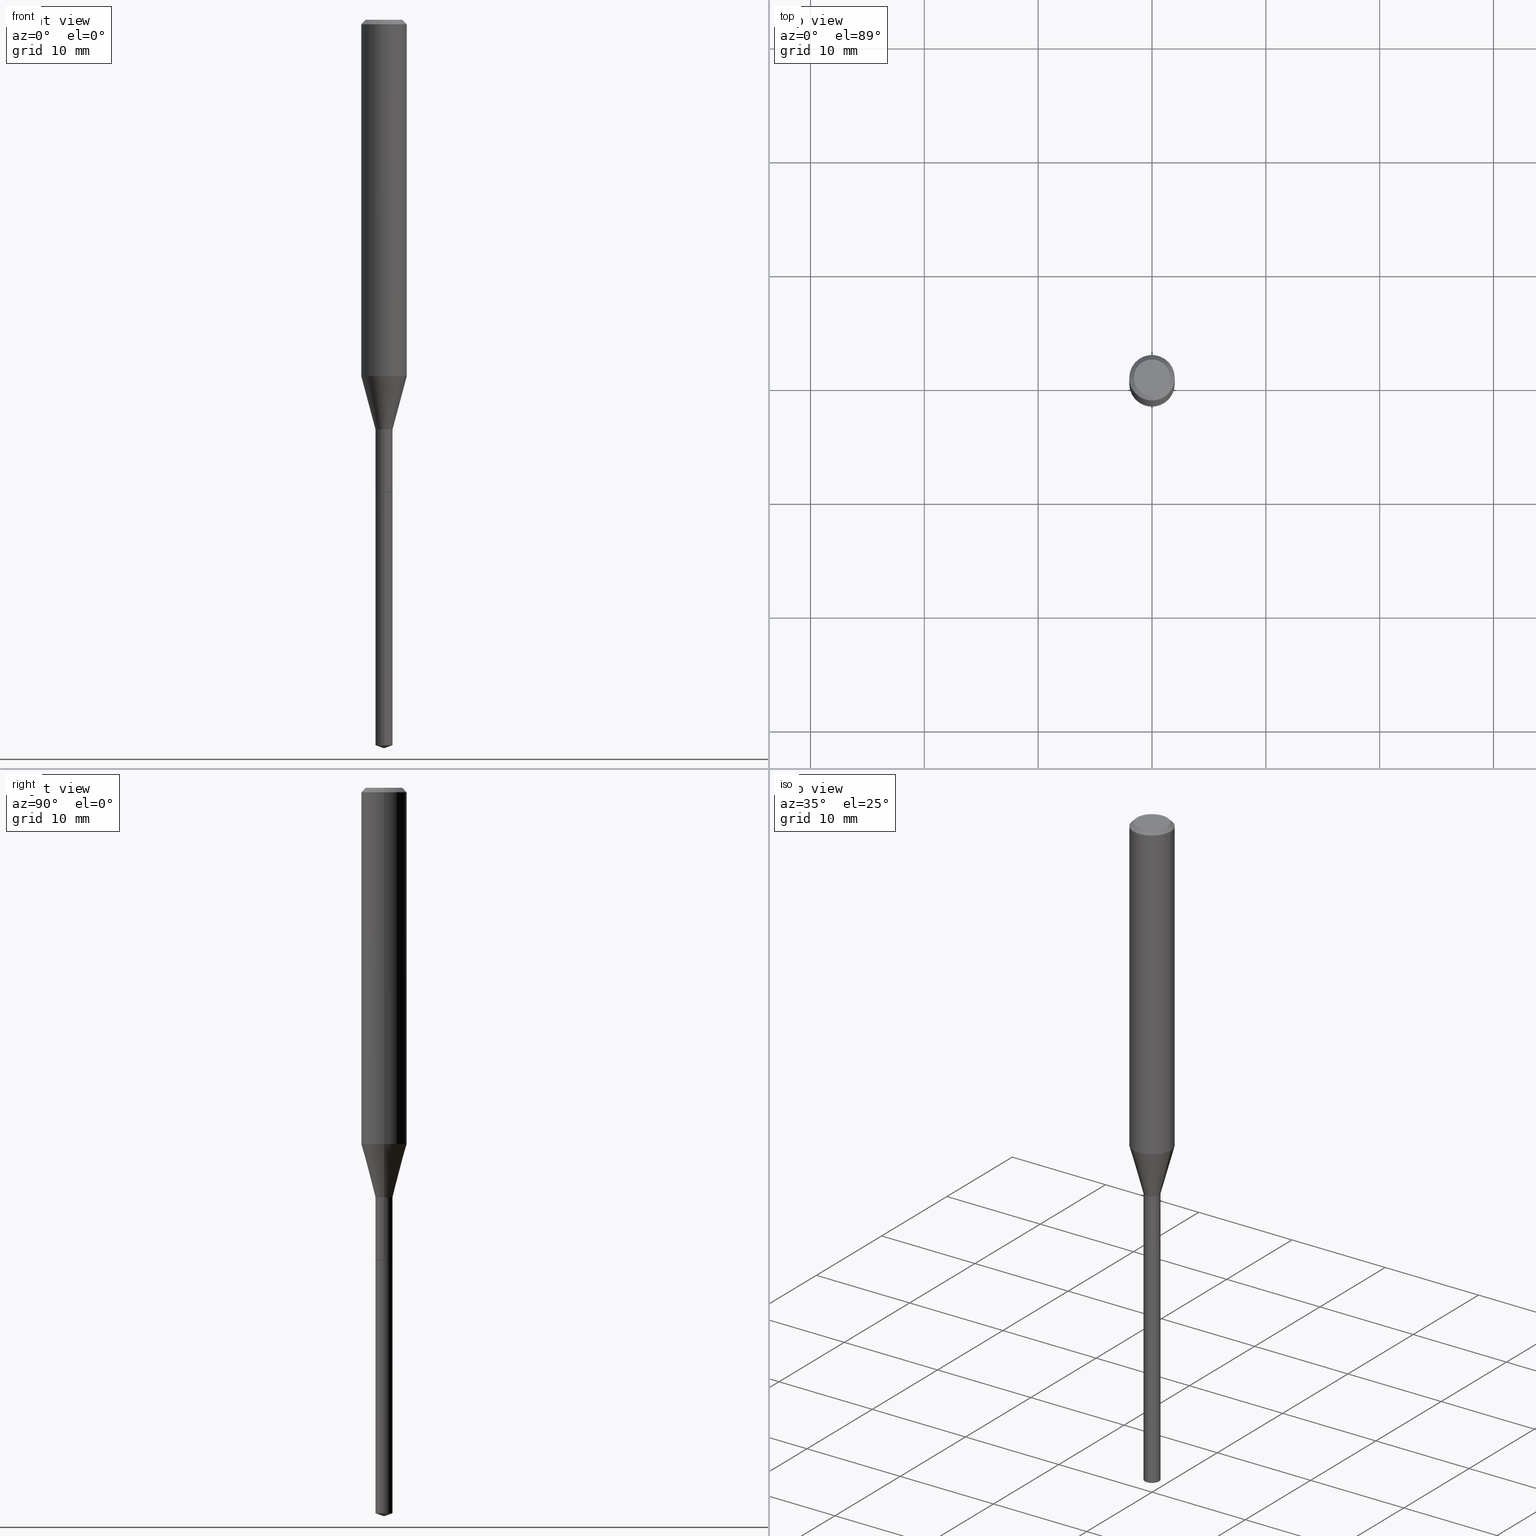
[diagram: canonical four-view strip — front | top / right | iso, engineering-drawing reading convention]
A machine part, canonical four-view strip (front | top / right | iso — engineering-drawing reading convention). The complete STEP part file that produces these views, byte-faithful:
ISO-10303-21;
HEADER;
FILE_DESCRIPTION (( 'STEP AP203' ),
    '1' );
FILE_NAME ('06036.STEP',
    '2024-04-23T19:06:04',
    ( '' ),
    ( '' ),
    'SwSTEP 2.0',
    'SolidWorks 2023',
    '' );
FILE_SCHEMA (( 'CONFIG_CONTROL_DESIGN' ));
ENDSEC;

DATA;
#1 = ORIENTED_EDGE ( 'NONE', *, *, #80, .T. ) ;
#2 = AXIS2_PLACEMENT_3D ( 'NONE', #170, #251, #319 ) ;
#3 = PRODUCT_DEFINITION ( 'UNKNOWN', '', #253, #236 ) ;
#4 = EDGE_LOOP ( 'NONE', ( #282, #421, #463, #6 ) ) ;
#5 = ORIENTED_EDGE ( 'NONE', *, *, #110, .F. ) ;
#6 = ORIENTED_EDGE ( 'NONE', *, *, #273, .F. ) ;
#7 = ORIENTED_EDGE ( 'NONE', *, *, #197, .F. ) ;
#8 = VERTEX_POINT ( 'NONE', #231 ) ;
#9 = CC_DESIGN_DATE_AND_TIME_ASSIGNMENT ( #103, #101, ( #91 ) ) ;
#10 = CONICAL_SURFACE ( 'NONE', #479, 0.07875000000000000056, 0.7853981633974452814 ) ;
#11 = CONICAL_SURFACE ( 'NONE', #201, 0.02954999999999996518, 0.2617993877991499629 ) ;
#12 = DIRECTION ( 'NONE',  ( 2.438088387897960049E-29, -3.491481338843145188E-15, -1.000000000000000000 ) ) ;
#13 = LINE ( 'NONE', #239, #357 ) ;
#14 = ORIENTED_EDGE ( 'NONE', *, *, #60, .F. ) ;
#15 = CARTESIAN_POINT ( 'NONE',  ( 3.995651482425893567E-29, -5.704731359535814187E-15, -1.633899999999999686 ) ) ;
#16 = LINE ( 'NONE', #160, #299 ) ;
#17 = ORIENTED_EDGE ( 'NONE', *, *, #156, .T. ) ;
#18 = CARTESIAN_POINT ( 'NONE',  ( 6.162254500096092043E-29, -8.796924529726947772E-15, -2.519699999999999829 ) ) ;
#19 = CYLINDRICAL_SURFACE ( 'NONE', #406, 0.07875000000000008382 ) ;
#20 = ADVANCED_FACE ( 'NONE', ( #378 ), #415, .T. ) ;
#21 = CIRCLE ( 'NONE', #487, 0.02904999999999999943 ) ;
#22 = LINE ( 'NONE', #169, #59 ) ;
#23 = AXIS2_PLACEMENT_3D ( 'NONE', #293, #483, #102 ) ;
#24 = DIRECTION ( 'NONE',  ( -2.445468806185136877E-29, 3.491481338843145188E-15, 1.000000000000000000 ) ) ;
#25 = LINE ( 'NONE', #290, #131 ) ;
#26 = DIRECTION ( 'NONE',  ( -6.982962677686267499E-15, -1.000000000000000000, 3.475157955500771490E-15 ) ) ;
#27 = DIRECTION ( 'NONE',  ( -2.445468806185136597E-29, 3.491481338843145583E-15, 1.000000000000000000 ) ) ;
#28 = COORDINATED_UNIVERSAL_TIME_OFFSET ( 5, 0, .BEHIND. ) ;
#29 = APPROVAL ( #326, 'UNSPECIFIED' ) ;
#30 = FACE_OUTER_BOUND ( 'NONE', #385, .T. ) ;
#31 = AXIS2_PLACEMENT_3D ( 'NONE', #468, #361, #134 ) ;
#32 = AXIS2_PLACEMENT_3D ( 'NONE', #480, #373, #259 ) ;
#33 = PERSON_AND_ORGANIZATION_ROLE ( 'creator' ) ;
#34 = DIRECTION ( 'NONE',  ( -2.438088387897960049E-29, 3.491481338843145188E-15, 1.000000000000000000 ) ) ;
#35 = DATE_AND_TIME ( #257, #142 ) ;
#36 = ADVANCED_FACE ( 'NONE', ( #383 ), #47, .F. ) ;
#37 = DIRECTION ( 'NONE',  ( -2.445468806185136597E-29, 3.491481338843145583E-15, 1.000000000000000000 ) ) ;
#38 = MANIFOLD_SOLID_BREP ( 'Body-Move/Copy2[2]', #413 ) ;
#39 = CARTESIAN_POINT ( 'NONE',  ( 3.463517470200008716E-29, -4.944985020203546646E-15, -1.416299999999999892 ) ) ;
#40 = DIRECTION ( 'NONE',  ( -2.445468806185136597E-29, 3.491481338843145583E-15, 1.000000000000000000 ) ) ;
#41 = CIRCLE ( 'NONE', #2, 0.06300000000000000044 ) ;
#42 = VECTOR ( 'NONE', #126, 39.37007874015748143 ) ;
#43 = DIRECTION ( 'NONE',  ( -6.982962677686265922E-15, -1.000000000000000000, 0.000000000000000000 ) ) ;
#44 = EDGE_LOOP ( 'NONE', ( #7, #343 ) ) ;
#45 = EDGE_LOOP ( 'NONE', ( #229, #127, #17, #345 ) ) ;
#46 = ORIENTED_EDGE ( 'NONE', *, *, #301, .T. ) ;
#47 = PLANE ( 'NONE',  #221 ) ;
#48 = CARTESIAN_POINT ( 'NONE',  ( -9.009629933693264283E-28, 1.286912690388695345E-13, 36.85037874015748116 ) ) ;
#49 = ORIENTED_EDGE ( 'NONE', *, *, #464, .T. ) ;
#50 = CIRCLE ( 'NONE', #271, 0.02904999999999999943 ) ;
#51 = CARTESIAN_POINT ( 'NONE',  ( 0.06300000000000000044, -5.137332111354472216E-16, -3.855188123712532709E-18 ) ) ;
#52 = CARTESIAN_POINT ( 'NONE',  ( 3.995651482425893567E-29, -5.704731359535814187E-15, -1.633899999999999686 ) ) ;
#53 = ORIENTED_EDGE ( 'NONE', *, *, #106, .F. ) ;
#54 = CARTESIAN_POINT ( 'NONE',  ( 0.000000000000000000, 0.000000000000000000, 0.000000000000000000 ) ) ;
#55 = FACE_OUTER_BOUND ( 'NONE', #247, .T. ) ;
#56 = ORIENTED_EDGE ( 'NONE', *, *, #418, .F. ) ;
#57 = CARTESIAN_POINT ( 'NONE',  ( 6.160528305085432200E-29, -8.799375051051723478E-15, -2.519699999999999829 ) ) ;
#58 = CARTESIAN_POINT ( 'NONE',  ( 3.463517470200008716E-29, -4.944985020203546646E-15, -1.416299999999999892 ) ) ;
#59 = VECTOR ( 'NONE', #218, 39.37007874015748143 ) ;
#60 = EDGE_CURVE ( 'NONE', #240, #204, #198, .T. ) ;
#61 = LINE ( 'NONE', #397, #333 ) ;
#62 = LOCAL_TIME ( 15, 6, 4.000000000000000000, #482 ) ;
#63 = CARTESIAN_POINT ( 'NONE',  ( 0.07875000000000000056, -6.048991419545733705E-16, -0.01575000000000010072 ) ) ;
#64 = EDGE_CURVE ( 'NONE', #465, #228, #386, .T. ) ;
#65 = DIRECTION ( 'NONE',  ( 2.445468806185136597E-29, -3.491481338843145583E-15, -1.000000000000000000 ) ) ;
#66 = PERSON_AND_ORGANIZATION ( #448, #303 ) ;
#67 = CARTESIAN_POINT ( 'NONE',  ( 2.099653784171709626E-16, 0.02954999999999124646, -2.508944679577433501 ) ) ;
#68 = PERSON_AND_ORGANIZATION ( #448, #303 ) ;
#69 = AXIS2_PLACEMENT_3D ( 'NONE', #254, #27, #391 ) ;
#70 = CALENDAR_DATE ( 2024, 23, 4 ) ;
#71 = ADVANCED_FACE ( 'NONE', ( #304 ), #113, .T. ) ;
#72 = DIRECTION ( 'NONE',  ( 2.445468806185136597E-29, -3.491481338843145583E-15, -1.000000000000000000 ) ) ;
#73 = SECURITY_CLASSIFICATION_LEVEL ( 'unclassified' ) ;
#74 = CIRCLE ( 'NONE', #346, 0.02954999999999999988 ) ;
#75 = EDGE_LOOP ( 'NONE', ( #352, #83 ) ) ;
#76 = EDGE_LOOP ( 'NONE', ( #130, #379, #191, #161 ) ) ;
#77 = ORIENTED_EDGE ( 'NONE', *, *, #192, .T. ) ;
#78 = EDGE_LOOP ( 'NONE', ( #467, #195, #14 ) ) ;
#79 = EDGE_LOOP ( 'NONE', ( #311, #429, #125, #5 ) ) ;
#80 = EDGE_CURVE ( 'NONE', #204, #240, #419, .T. ) ;
#81 = AXIS2_PLACEMENT_3D ( 'NONE', #313, #243, #400 ) ;
#82 = VERTEX_POINT ( 'NONE', #114 ) ;
#83 = ORIENTED_EDGE ( 'NONE', *, *, #98, .T. ) ;
#84 = CC_DESIGN_PERSON_AND_ORGANIZATION_ASSIGNMENT ( #298, #33, ( #253 ) ) ;
#85 = CARTESIAN_POINT ( 'NONE',  ( 3.995651482425893567E-29, -5.704731359535814187E-15, -1.633899999999999686 ) ) ;
#86 = DIRECTION ( 'NONE',  ( -6.982962677686267499E-15, -1.000000000000000000, 3.475157955500771490E-15 ) ) ;
#87 = VERTEX_POINT ( 'NONE', #323 ) ;
#88 = DIRECTION ( 'NONE',  ( -2.445468806185136877E-29, 3.491481338843145188E-15, 1.000000000000000000 ) ) ;
#89 = FACE_OUTER_BOUND ( 'NONE', #455, .T. ) ;
#90 = ORIENTED_EDGE ( 'NONE', *, *, #301, .F. ) ;
#91 = SECURITY_CLASSIFICATION ( '', '', #73 ) ;
#92 = DIRECTION ( 'NONE',  ( -0.2588190451025212391, 5.211531920934549464E-15, 0.9659258262890679791 ) ) ;
#93 = ADVANCED_FACE ( 'NONE', ( #402 ), #10, .T. ) ;
#94 = VERTEX_POINT ( 'NONE', #97 ) ;
#95 = DIRECTION ( 'NONE',  ( -2.445468806185136597E-29, 3.491481338843145583E-15, 1.000000000000000000 ) ) ;
#96 = CARTESIAN_POINT ( 'NONE',  ( 2.099653784171495155E-16, 0.02954999999999429611, -1.633899999999999686 ) ) ;
#97 = CARTESIAN_POINT ( 'NONE',  ( -0.06300000000000000044, 4.674220642376242452E-16, -3.855188123719040041E-18 ) ) ;
#98 = EDGE_CURVE ( 'NONE', #187, #94, #41, .T. ) ;
#99 = CIRCLE ( 'NONE', #23, 0.07875000000000000056 ) ;
#100 = DIRECTION ( 'NONE',  ( -0.7071067811865453523, 2.468850131082234184E-15, -0.7071067811865496822 ) ) ;
#101 = DATE_TIME_ROLE ( 'classification_date' ) ;
#102 = DIRECTION ( 'NONE',  ( 1.000000000000000000, -6.982962677686265922E-15, 0.000000000000000000 ) ) ;
#103 = DATE_AND_TIME ( #446, #62 ) ;
#104 = CARTESIAN_POINT ( 'NONE',  ( 0.07875000000000015321, -4.853798352159471630E-15, -1.232683100267610854 ) ) ;
#105 = APPROVAL_DATE_TIME ( #364, #29 ) ;
#106 = EDGE_CURVE ( 'NONE', #204, #82, #325, .T. ) ;
#107 = DIRECTION ( 'NONE',  ( -2.444945154218927831E-29, 3.492231238263175322E-15, 1.000000000000000000 ) ) ;
#108 = APPLICATION_PROTOCOL_DEFINITION ( 'international standard', 'config_control_design', 1994, #209 ) ;
#109 = CARTESIAN_POINT ( 'NONE',  ( 3.995651482425893567E-29, -5.704731359535814187E-15, -1.633899999999999686 ) ) ;
#110 = EDGE_CURVE ( 'NONE', #196, #87, #189, .T. ) ;
#111 = CIRCLE ( 'NONE', #190, 0.02954999999999999988 ) ;
#112 = PRODUCT_DEFINITION_SHAPE ( 'NONE', 'NONE',  #3 ) ;
#113 = CYLINDRICAL_SURFACE ( 'NONE', #356, 0.02954999999999997906 ) ;
#114 = CARTESIAN_POINT ( 'NONE',  ( -2.063465471255892306E-16, -0.02955000000000570365, -1.633899999999999686 ) ) ;
#115 = ORIENTED_EDGE ( 'NONE', *, *, #143, .F. ) ;
#116 = ORIENTED_EDGE ( 'NONE', *, *, #368, .F. ) ;
#117 = AXIS2_PLACEMENT_3D ( 'NONE', #340, #149, #305 ) ;
#118 = ADVANCED_FACE ( 'NONE', ( #132 ), #478, .F. ) ;
#119 = ORIENTED_EDGE ( 'NONE', *, *, #273, .T. ) ;
#120 = UNCERTAINTY_MEASURE_WITH_UNIT (LENGTH_MEASURE( 1.000000000000000082E-05 ), #166, 'distance_accuracy_value', 'NONE');
#121 = CIRCLE ( 'NONE', #388, 0.06300000000000000044 ) ;
#122 = CIRCLE ( 'NONE', #453, 0.02954999999999996518 ) ;
#123 = ORIENTED_EDGE ( 'NONE', *, *, #144, .T. ) ;
#124 = CARTESIAN_POINT ( 'NONE',  ( -0.02904999999999999943, -5.495669467623394527E-15, -1.633899999999999686 ) ) ;
#125 = ORIENTED_EDGE ( 'NONE', *, *, #485, .T. ) ;
#126 = DIRECTION ( 'NONE',  ( 0.7071067811866138531, -2.468850131082952047E-15, 0.7071067811864811814 ) ) ;
#127 = ORIENTED_EDGE ( 'NONE', *, *, #110, .T. ) ;
#128 = CARTESIAN_POINT ( 'NONE',  ( 6.160528305085432200E-29, -8.799375051051723478E-15, -2.519699999999999829 ) ) ;
#129 = DIRECTION ( 'NONE',  ( -2.445468806185136877E-29, 3.491481338843145188E-15, 1.000000000000000000 ) ) ;
#130 = ORIENTED_EDGE ( 'NONE', *, *, #178, .F. ) ;
#131 = VECTOR ( 'NONE', #92, 39.37007874015748854 ) ;
#132 = FACE_OUTER_BOUND ( 'NONE', #269, .T. ) ;
#133 = CARTESIAN_POINT ( 'NONE',  ( 9.427742298522557911E-47, -1.346031739168366987E-32, -3.855188123715866879E-18 ) ) ;
#134 = DIRECTION ( 'NONE',  ( 1.000000000000000000, -6.982962677686263555E-15, 0.000000000000000000 ) ) ;
#135 =( NAMED_UNIT ( * ) PLANE_ANGLE_UNIT ( ) SI_UNIT ( $, .RADIAN. ) );
#136 = CARTESIAN_POINT ( 'NONE',  ( 3.851613369741614799E-31, -5.499083108677989540E-17, -0.01575000000000010072 ) ) ;
#137 = CONICAL_SURFACE ( 'NONE', #184, 108.1684023407318591, 1.221730476396026832 ) ;
#138 = APPROVAL_DATE_TIME ( #291, #439 ) ;
#139 = CARTESIAN_POINT ( 'NONE',  ( 0.07875000000000000056, -5.952550484112880131E-16, -0.01575000000000010072 ) ) ;
#140 = SHAPE_DEFINITION_REPRESENTATION ( #112, #289 ) ;
#141 = CIRCLE ( 'NONE', #69, 0.07875000000000015321 ) ;
#142 = LOCAL_TIME ( 15, 6, 4.000000000000000000, #371 ) ;
#143 = EDGE_CURVE ( 'NONE', #94, #461, #61, .T. ) ;
#144 = EDGE_CURVE ( 'NONE', #87, #196, #265, .T. ) ;
#145 = ORIENTED_EDGE ( 'NONE', *, *, #308, .F. ) ;
#146 = AXIS2_PLACEMENT_3D ( 'NONE', #312, #376, #454 ) ;
#147 = CONICAL_SURFACE ( 'NONE', #449, 0.07875000000000000056, 0.7853981633974452814 ) ;
#148 = EDGE_CURVE ( 'NONE', #458, #309, #141, .T. ) ;
#149 = DIRECTION ( 'NONE',  ( -2.444945154218927831E-29, 3.492231238263175322E-15, 1.000000000000000000 ) ) ;
#150 = ORIENTED_EDGE ( 'NONE', *, *, #297, .T. ) ;
#151 = ADVANCED_FACE ( 'NONE', ( #355 ), #211, .T. ) ;
#152 = EDGE_LOOP ( 'NONE', ( #194, #382, #193, #56 ) ) ;
#153 = ORIENTED_EDGE ( 'NONE', *, *, #144, .F. ) ;
#154 = ORIENTED_EDGE ( 'NONE', *, *, #148, .T. ) ;
#155 = CONICAL_SURFACE ( 'NONE', #226, 0.02904999999999999943, 0.7853981633975420928 ) ;
#156 = EDGE_CURVE ( 'NONE', #87, #228, #277, .T. ) ;
#157 = CIRCLE ( 'NONE', #81, 0.07875000000000000056 ) ;
#158 = DIMENSIONAL_EXPONENTS ( 1.000000000000000000, 0.000000000000000000, 0.000000000000000000, 0.000000000000000000, 0.000000000000000000, 0.000000000000000000, 0.000000000000000000 ) ;
#159 = DIRECTION ( 'NONE',  ( -1.000000000000000000, 6.982962677686265922E-15, -4.876176775795935793E-29 ) ) ;
#160 = CARTESIAN_POINT ( 'NONE',  ( -0.07875000000000008382, 5.595524044110794920E-16, -3.873661383575742696E-30 ) ) ;
#161 = ORIENTED_EDGE ( 'NONE', *, *, #148, .F. ) ;
#162 = CYLINDRICAL_SURFACE ( 'NONE', #167, 0.07875000000000008382 ) ;
#163 = FACE_OUTER_BOUND ( 'NONE', #78, .T. ) ;
#164 = ORIENTED_EDGE ( 'NONE', *, *, #178, .T. ) ;
#165 = CARTESIAN_POINT ( 'NONE',  ( 0.02904999999999999943, -5.907586425322600791E-15, -1.633899999999999686 ) ) ;
#166 =( CONVERSION_BASED_UNIT ( 'INCH', #354 ) LENGTH_UNIT ( ) NAMED_UNIT ( #158 ) );
#167 = AXIS2_PLACEMENT_3D ( 'NONE', #54, #284, #387 ) ;
#168 = CONICAL_SURFACE ( 'NONE', #260, 0.02904999999999999943, 0.7853981633975420928 ) ;
#169 = CARTESIAN_POINT ( 'NONE',  ( -0.02904999999999999943, -5.498318694797504939E-15, -1.633899999999999686 ) ) ;
#170 = CARTESIAN_POINT ( 'NONE',  ( 9.427742298522557911E-47, -1.346031739168366987E-32, -3.855188123715866879E-18 ) ) ;
#171 = CC_DESIGN_DATE_AND_TIME_ASSIGNMENT ( #35, #328, ( #3 ) ) ;
#172 = CARTESIAN_POINT ( 'NONE',  ( 0.07875000000000008382, -5.499083108677941345E-16, 3.839989210939303220E-30 ) ) ;
#173 = DIRECTION ( 'NONE',  ( 1.000000000000000000, -6.982962677686270655E-15, 0.000000000000000000 ) ) ;
#174 = PERSON_AND_ORGANIZATION ( #448, #303 ) ;
#175 = VECTOR ( 'NONE', #262, 39.37007874015748143 ) ;
#176 = CARTESIAN_POINT ( 'NONE',  ( 0.02954999999999996518, -5.151331567329175468E-15, -1.416299999999999892 ) ) ;
#177 = PERSON_AND_ORGANIZATION ( #448, #303 ) ;
#178 = EDGE_CURVE ( 'NONE', #465, #458, #25, .T. ) ;
#179 = CARTESIAN_POINT ( 'NONE',  ( 3.995651482425893567E-29, -5.704731359535814187E-15, -1.633899999999999686 ) ) ;
#180 = LINE ( 'NONE', #139, #175 ) ;
#181 = APPROVAL_STATUS ( 'not_yet_approved' ) ;
#182 = VECTOR ( 'NONE', #208, 39.37007874015748143 ) ;
#183 = DIRECTION ( 'NONE',  ( 1.000000000000000000, -6.982962677686277755E-15, 0.000000000000000000 ) ) ;
#184 = AXIS2_PLACEMENT_3D ( 'NONE', #433, #199, #86 ) ;
#185 = ADVANCED_FACE ( 'NONE', ( #353 ), #162, .T. ) ;
#186 = DIRECTION ( 'NONE',  ( -6.982962677686265922E-15, -1.000000000000000000, 0.000000000000000000 ) ) ;
#187 = VERTEX_POINT ( 'NONE', #51 ) ;
#188 = DIRECTION ( 'NONE',  ( 1.000000000000000000, -6.982962677686266711E-15, 4.876176775795935793E-29 ) ) ;
#189 = CIRCLE ( 'NONE', #31, 0.02954999999999999294 ) ;
#190 = AXIS2_PLACEMENT_3D ( 'NONE', #179, #489, #329 ) ;
#191 = ORIENTED_EDGE ( 'NONE', *, *, #308, .T. ) ;
#192 = EDGE_CURVE ( 'NONE', #200, #240, #476, .T. ) ;
#193 = ORIENTED_EDGE ( 'NONE', *, *, #464, .F. ) ;
#194 = ORIENTED_EDGE ( 'NONE', *, *, #368, .T. ) ;
#195 = ORIENTED_EDGE ( 'NONE', *, *, #220, .T. ) ;
#196 = VERTEX_POINT ( 'NONE', #202 ) ;
#197 = EDGE_CURVE ( 'NONE', #207, #341, #21, .T. ) ;
#198 = CIRCLE ( 'NONE', #146, 0.02954999999999999988 ) ;
#199 = DIRECTION ( 'NONE',  ( -2.444945154218927831E-29, 3.492231238263175322E-15, 1.000000000000000000 ) ) ;
#200 = VERTEX_POINT ( 'NONE', #128 ) ;
#201 = AXIS2_PLACEMENT_3D ( 'NONE', #58, #466, #473 ) ;
#202 = CARTESIAN_POINT ( 'NONE',  ( -0.02954999999999999294, -5.114019941117860308E-15, -1.633399999999999741 ) ) ;
#203 = LINE ( 'NONE', #215, #42 ) ;
#204 = VERTEX_POINT ( 'NONE', #431 ) ;
#205 = DIRECTION ( 'NONE',  ( 1.000000000000000000, -6.982962677686277755E-15, 0.000000000000000000 ) ) ;
#206 = DIRECTION ( 'NONE',  ( -2.444945154218927831E-29, 3.492231238263175716E-15, 1.000000000000000000 ) ) ;
#207 = VERTEX_POINT ( 'NONE', #165 ) ;
#208 = DIRECTION ( 'NONE',  ( -6.561838499445191385E-15, -0.9396926207859057634, 0.3420201433256756518 ) ) ;
#209 = APPLICATION_CONTEXT ( 'configuration controlled 3d designs of mechanical parts and assemblies' ) ;
#210 = CARTESIAN_POINT ( 'NONE',  ( -0.07875000000000000056, -1.619888031778148233E-15, -0.01575000000000010072 ) ) ;
#211 = CONICAL_SURFACE ( 'NONE', #405, 0.02954999999999996518, 0.2617993877991499629 ) ;
#212 = AXIS2_PLACEMENT_3D ( 'NONE', #48, #436, #26 ) ;
#213 = EDGE_CURVE ( 'NONE', #341, #207, #50, .T. ) ;
#214 = CARTESIAN_POINT ( 'NONE',  ( 3.463517470200008716E-29, -4.944985020203546646E-15, -1.416299999999999892 ) ) ;
#215 = CARTESIAN_POINT ( 'NONE',  ( 0.02904999999999999943, -5.907586425322600791E-15, -1.633899999999999686 ) ) ;
#216 = CARTESIAN_POINT ( 'NONE',  ( 3.994428748022801887E-29, -5.702985618866394262E-15, -1.633399999999999741 ) ) ;
#217 = APPLICATION_PROTOCOL_DEFINITION ( 'international standard', 'config_control_design', 1994, #233 ) ;
#218 = DIRECTION ( 'NONE',  ( -0.7071067811866138531, 7.493145998870593974E-15, 0.7071067811864811814 ) ) ;
#219 = COORDINATED_UNIVERSAL_TIME_OFFSET ( 5, 0, .BEHIND. ) ;
#220 = EDGE_CURVE ( 'NONE', #200, #204, #394, .T. ) ;
#221 = AXIS2_PLACEMENT_3D ( 'NONE', #347, #12, #159 ) ;
#222 = VECTOR ( 'NONE', #24, 39.37007874015748143 ) ;
#223 = CYLINDRICAL_SURFACE ( 'NONE', #292, 0.02954999999999997906 ) ;
#224 = APPROVAL_DATE_TIME ( #444, #404 ) ;
#225 = MECHANICAL_CONTEXT ( 'NONE', #209, 'mechanical' ) ;
#226 = AXIS2_PLACEMENT_3D ( 'NONE', #409, #37, #183 ) ;
#227 = CC_DESIGN_SECURITY_CLASSIFICATION ( #91, ( #253 ) ) ;
#228 = VERTEX_POINT ( 'NONE', #287 ) ;
#229 = ORIENTED_EDGE ( 'NONE', *, *, #451, .F. ) ;
#230 = EDGE_CURVE ( 'NONE', #341, #196, #22, .T. ) ;
#231 = CARTESIAN_POINT ( 'NONE',  ( 2.099653784171710859E-16, 0.02954999999999429611, -1.633899999999999686 ) ) ;
#232 = VECTOR ( 'NONE', #206, 39.37007874015748143 ) ;
#233 = APPLICATION_CONTEXT ( 'configuration controlled 3d designs of mechanical parts and assemblies' ) ;
#234 = ORIENTED_EDGE ( 'NONE', *, *, #143, .T. ) ;
#235 = DIRECTION ( 'NONE',  ( -2.444945154218927831E-29, 3.492231238263175322E-15, 1.000000000000000000 ) ) ;
#236 = DESIGN_CONTEXT ( 'detailed design', #233, 'design' ) ;
#237 = ADVANCED_FACE ( 'NONE', ( #327 ), #369, .F. ) ;
#238 = ORIENTED_EDGE ( 'NONE', *, *, #372, .F. ) ;
#239 = CARTESIAN_POINT ( 'NONE',  ( -0.02954999999999997906, 2.099653784171094561E-16, -1.453545319170323675E-30 ) ) ;
#240 = VERTEX_POINT ( 'NONE', #67 ) ;
#241 = DIRECTION ( 'NONE',  ( -2.445468806185136597E-29, 3.491481338843145583E-15, 1.000000000000000000 ) ) ;
#242 = VECTOR ( 'NONE', #321, 39.37007874015748143 ) ;
#243 = DIRECTION ( 'NONE',  ( -2.445468806185136597E-29, 3.491481338843145583E-15, 1.000000000000000000 ) ) ;
#244 = ORIENTED_EDGE ( 'NONE', *, *, #418, .T. ) ;
#245 = VECTOR ( 'NONE', #445, 39.37007874015748854 ) ;
#246 = CARTESIAN_POINT ( 'NONE',  ( -2.063465471255892306E-16, -0.02955000000000570365, -1.633899999999999686 ) ) ;
#247 = EDGE_LOOP ( 'NONE', ( #276, #164, #116, #145 ) ) ;
#248 = DIRECTION ( 'NONE',  ( 1.000000000000000000, -6.982962677686277755E-15, 0.000000000000000000 ) ) ;
#249 = DIRECTION ( 'NONE',  ( 1.000000000000000000, -6.982962677686270655E-15, 0.000000000000000000 ) ) ;
#250 = ADVANCED_FACE ( 'NONE', ( #481 ), #155, .T. ) ;
#251 = DIRECTION ( 'NONE',  ( -2.445468806185136597E-29, 3.491481338843145583E-15, 1.000000000000000000 ) ) ;
#252 = CARTESIAN_POINT ( 'NONE',  ( -0.02954999999999996518, -5.114019941117860308E-15, -1.416299999999999892 ) ) ;
#253 = PRODUCT_DEFINITION_FORMATION_WITH_SPECIFIED_SOURCE ( 'ANY', '', #266, .NOT_KNOWN. ) ;
#254 = CARTESIAN_POINT ( 'NONE',  ( 3.014488069616027069E-29, -4.303890041291677495E-15, -1.232683100267610854 ) ) ;
#255 = COORDINATED_UNIVERSAL_TIME_OFFSET ( 5, 0, .BEHIND. ) ;
#256 = DIRECTION ( 'NONE',  ( 1.000000000000000000, -6.982962677686265922E-15, 4.876176775795935793E-29 ) ) ;
#257 = CALENDAR_DATE ( 2024, 23, 4 ) ;
#258 = FACE_OUTER_BOUND ( 'NONE', #381, .T. ) ;
#259 = DIRECTION ( 'NONE',  ( 1.000000000000000000, 0.000000000000000000, 0.000000000000000000 ) ) ;
#260 = AXIS2_PLACEMENT_3D ( 'NONE', #52, #424, #286 ) ;
#261 =( NAMED_UNIT ( * ) SI_UNIT ( $, .STERADIAN. ) SOLID_ANGLE_UNIT ( ) );
#262 = DIRECTION ( 'NONE',  ( 0.7071067811865453523, -7.319954787623248157E-15, -0.7071067811865496822 ) ) ;
#263 = ADVANCED_FACE ( 'NONE', ( #258 ), #223, .T. ) ;
#264 = DIRECTION ( 'NONE',  ( -2.444945154218927831E-29, 3.492231238263175322E-15, 1.000000000000000000 ) ) ;
#265 = CIRCLE ( 'NONE', #280, 0.02954999999999999294 ) ;
#266 = PRODUCT ( '06036', '06036', '', ( #225 ) ) ;
#267 = CC_DESIGN_PERSON_AND_ORGANIZATION_ASSIGNMENT ( #331, #324, ( #253 ) ) ;
#268 = CARTESIAN_POINT ( 'NONE',  ( 0.000000000000000000, 0.000000000000000000, 0.000000000000000000 ) ) ;
#269 = EDGE_LOOP ( 'NONE', ( #150, #119 ) ) ;
#270 = ORIENTED_EDGE ( 'NONE', *, *, #80, .F. ) ;
#271 = AXIS2_PLACEMENT_3D ( 'NONE', #471, #95, #248 ) ;
#272 = CC_DESIGN_APPROVAL ( #29, ( #253 ) ) ;
#273 = EDGE_CURVE ( 'NONE', #8, #82, #74, .T. ) ;
#274 = ORIENTED_EDGE ( 'NONE', *, *, #485, .F. ) ;
#275 = CARTESIAN_POINT ( 'NONE',  ( 3.014488069616027069E-29, -4.303890041291677495E-15, -1.232683100267610854 ) ) ;
#276 = ORIENTED_EDGE ( 'NONE', *, *, #330, .T. ) ;
#277 = LINE ( 'NONE', #427, #398 ) ;
#278 = DIRECTION ( 'NONE',  ( 1.000000000000000000, -6.982962677686265922E-15, 4.875905316334701673E-29 ) ) ;
#279 = CARTESIAN_POINT ( 'NONE',  ( 3.995651482425893567E-29, -5.704731359535814187E-15, -1.633899999999999686 ) ) ;
#280 = AXIS2_PLACEMENT_3D ( 'NONE', #216, #437, #359 ) ;
#281 = DIRECTION ( 'NONE',  ( -2.445468806185136597E-29, 3.491481338843145583E-15, 1.000000000000000000 ) ) ;
#282 = ORIENTED_EDGE ( 'NONE', *, *, #475, .F. ) ;
#283 = CC_DESIGN_APPROVAL ( #439, ( #3 ) ) ;
#284 = DIRECTION ( 'NONE',  ( -2.445468806185136597E-29, 3.491481338843145583E-15, 1.000000000000000000 ) ) ;
#285 = ADVANCED_FACE ( 'NONE', ( #30 ), #147, .T. ) ;
#286 = DIRECTION ( 'NONE',  ( 1.000000000000000000, -6.982962677686277755E-15, 0.000000000000000000 ) ) ;
#287 = CARTESIAN_POINT ( 'NONE',  ( 0.02954999999999996518, -5.151331567329175468E-15, -1.416299999999999892 ) ) ;
#288 = DIRECTION ( 'NONE',  ( -2.445468806185136877E-29, 3.491481338843145188E-15, 1.000000000000000000 ) ) ;
#289 = ADVANCED_BREP_SHAPE_REPRESENTATION ( '06036', ( #370, #38, #32 ), #399 ) ;
#290 = CARTESIAN_POINT ( 'NONE',  ( -0.02954999999999996518, -4.735019641786437289E-15, -1.416299999999999892 ) ) ;
#291 = DATE_AND_TIME ( #294, #460 ) ;
#292 = AXIS2_PLACEMENT_3D ( 'NONE', #375, #450, #335 ) ;
#293 = CARTESIAN_POINT ( 'NONE',  ( 3.851613369741614799E-31, -5.499083108677989540E-17, -0.01575000000000010072 ) ) ;
#294 = CALENDAR_DATE ( 2024, 23, 4 ) ;
#295 = APPROVAL_ROLE ( '' ) ;
#296 = CARTESIAN_POINT ( 'NONE',  ( 3.995651482425893567E-29, -5.704731359535814187E-15, -1.633899999999999686 ) ) ;
#297 = EDGE_CURVE ( 'NONE', #82, #8, #111, .T. ) ;
#298 = PERSON_AND_ORGANIZATION ( #448, #303 ) ;
#299 = VECTOR ( 'NONE', #288, 39.37007874015748143 ) ;
#300 = PERSON_AND_ORGANIZATION_ROLE ( 'design_owner' ) ;
#301 = EDGE_CURVE ( 'NONE', #461, #457, #99, .T. ) ;
#302 = EDGE_CURVE ( 'NONE', #187, #457, #180, .T. ) ;
#303 = ORGANIZATION ( 'UNSPECIFIED', 'UNSPECIFIED', '' ) ;
#304 = FACE_OUTER_BOUND ( 'NONE', #45, .T. ) ;
#305 = DIRECTION ( 'NONE',  ( -6.982962677686265922E-15, -1.000000000000000000, 0.000000000000000000 ) ) ;
#306 = ORIENTED_EDGE ( 'NONE', *, *, #358, .F. ) ;
#307 = ORIENTED_EDGE ( 'NONE', *, *, #330, .F. ) ;
#308 = EDGE_CURVE ( 'NONE', #228, #309, #363, .T. ) ;
#309 = VERTEX_POINT ( 'NONE', #104 ) ;
#310 = EDGE_LOOP ( 'NONE', ( #306, #154, #244, #90 ) ) ;
#311 = ORIENTED_EDGE ( 'NONE', *, *, #230, .F. ) ;
#312 = CARTESIAN_POINT ( 'NONE',  ( 6.135087731483795032E-29, -8.760589724432118638E-15, -2.508944679577433501 ) ) ;
#313 = CARTESIAN_POINT ( 'NONE',  ( 3.851613369741614799E-31, -5.499083108677989540E-17, -0.01575000000000010072 ) ) ;
#314 = ORIENTED_EDGE ( 'NONE', *, *, #475, .T. ) ;
#315 = DIRECTION ( 'NONE',  ( -2.445468806185136597E-29, 3.491481338843145583E-15, 1.000000000000000000 ) ) ;
#316 = DIRECTION ( 'NONE',  ( 1.000000000000000000, -6.982962677686261189E-15, 0.000000000000000000 ) ) ;
#317 = ORIENTED_EDGE ( 'NONE', *, *, #156, .F. ) ;
#318 = ADVANCED_FACE ( 'NONE', ( #484 ), #452, .T. ) ;
#319 = DIRECTION ( 'NONE',  ( 1.000000000000000000, -6.982962677686265922E-15, 4.875905316334701673E-29 ) ) ;
#320 = LINE ( 'NONE', #172, #222 ) ;
#321 = DIRECTION ( 'NONE',  ( -2.444945154218927831E-29, 3.492231238263175716E-15, 1.000000000000000000 ) ) ;
#322 =( LENGTH_UNIT ( ) NAMED_UNIT ( * ) SI_UNIT ( $, .METRE. ) );
#323 = CARTESIAN_POINT ( 'NONE',  ( 0.02954999999999999294, -5.909332165992023083E-15, -1.633399999999999741 ) ) ;
#324 = PERSON_AND_ORGANIZATION_ROLE ( 'design_supplier' ) ;
#325 = LINE ( 'NONE', #246, #242 ) ;
#326 = APPROVAL_STATUS ( 'not_yet_approved' ) ;
#327 = FACE_OUTER_BOUND ( 'NONE', #44, .T. ) ;
#328 = DATE_TIME_ROLE ( 'creation_date' ) ;
#329 = DIRECTION ( 'NONE',  ( -6.982962677686265922E-15, -1.000000000000000000, 0.000000000000000000 ) ) ;
#330 = EDGE_CURVE ( 'NONE', #228, #465, #122, .T. ) ;
#331 = PERSON_AND_ORGANIZATION ( #448, #303 ) ;
#332 = AXIS2_PLACEMENT_3D ( 'NONE', #296, #34, #256 ) ;
#333 = VECTOR ( 'NONE', #100, 39.37007874015748143 ) ;
#334 = APPROVAL_PERSON_ORGANIZATION ( #174, #404, #295 ) ;
#335 = DIRECTION ( 'NONE',  ( 1.000000000000000000, -6.982962677686266711E-15, 4.876176775795935793E-29 ) ) ;
#336 = CARTESIAN_POINT ( 'NONE',  ( 3.851613369741614799E-31, -5.499083108677989540E-17, -0.01575000000000010072 ) ) ;
#337 = CC_DESIGN_PERSON_AND_ORGANIZATION_ASSIGNMENT ( #477, #442, ( #91 ) ) ;
#338 = DIRECTION ( 'NONE',  ( 1.000000000000000000, -6.982962677686270655E-15, 0.000000000000000000 ) ) ;
#339 = AXIS2_PLACEMENT_3D ( 'NONE', #109, #264, #412 ) ;
#340 = CARTESIAN_POINT ( 'NONE',  ( 6.135087731483795032E-29, -8.760589724432118638E-15, -2.508944679577433501 ) ) ;
#341 = VERTEX_POINT ( 'NONE', #124 ) ;
#342 = ORIENTED_EDGE ( 'NONE', *, *, #302, .F. ) ;
#343 = ORIENTED_EDGE ( 'NONE', *, *, #213, .F. ) ;
#344 = CC_DESIGN_PERSON_AND_ORGANIZATION_ASSIGNMENT ( #66, #443, ( #3 ) ) ;
#345 = ORIENTED_EDGE ( 'NONE', *, *, #64, .F. ) ;
#346 = AXIS2_PLACEMENT_3D ( 'NONE', #367, #107, #186 ) ;
#347 = CARTESIAN_POINT ( 'NONE',  ( 4.713871149261278955E-47, -6.730158695841834933E-33, -1.927594061857933439E-18 ) ) ;
#348 = AXIS2_PLACEMENT_3D ( 'NONE', #275, #281, #316 ) ;
#349 = DIRECTION ( 'NONE',  ( -2.445468806185136597E-29, 3.491481338843145583E-15, 1.000000000000000000 ) ) ;
#350 = ORIENTED_EDGE ( 'NONE', *, *, #297, .F. ) ;
#351 = DIRECTION ( 'NONE',  ( 6.982962677686265922E-15, 1.000000000000000000, -3.492231238263175716E-15 ) ) ;
#352 = ORIENTED_EDGE ( 'NONE', *, *, #372, .T. ) ;
#353 = FACE_OUTER_BOUND ( 'NONE', #310, .T. ) ;
#354 = LENGTH_MEASURE_WITH_UNIT ( LENGTH_MEASURE( 0.02539999999999999897 ), #322 );
#355 = FACE_OUTER_BOUND ( 'NONE', #76, .T. ) ;
#356 = AXIS2_PLACEMENT_3D ( 'NONE', #268, #40, #188 ) ;
#357 = VECTOR ( 'NONE', #129, 39.37007874015748143 ) ;
#358 = EDGE_CURVE ( 'NONE', #458, #461, #16, .T. ) ;
#359 = DIRECTION ( 'NONE',  ( 1.000000000000000000, -6.982962677686263555E-15, 0.000000000000000000 ) ) ;
#360 = DIRECTION ( 'NONE',  ( -2.445468806185136597E-29, 3.491481338843145583E-15, 1.000000000000000000 ) ) ;
#361 = DIRECTION ( 'NONE',  ( -2.445468806185136597E-29, 3.491481338843145583E-15, 1.000000000000000000 ) ) ;
#362 = PERSON_AND_ORGANIZATION ( #448, #303 ) ;
#363 = LINE ( 'NONE', #176, #245 ) ;
#364 = DATE_AND_TIME ( #403, #488 ) ;
#365 = AXIS2_PLACEMENT_3D ( 'NONE', #85, #235, #43 ) ;
#366 = APPROVAL_PERSON_ORGANIZATION ( #177, #439, #410 ) ;
#367 = CARTESIAN_POINT ( 'NONE',  ( 3.995651482425893567E-29, -5.704731359535814187E-15, -1.633899999999999686 ) ) ;
#368 = EDGE_CURVE ( 'NONE', #309, #458, #432, .T. ) ;
#369 = PLANE ( 'NONE',  #332 ) ;
#370 = MANIFOLD_SOLID_BREP ( 'Body-Move/Copy2[1]', #470 ) ;
#371 = COORDINATED_UNIVERSAL_TIME_OFFSET ( 5, 0, .BEHIND. ) ;
#372 = EDGE_CURVE ( 'NONE', #94, #187, #121, .T. ) ;
#373 = DIRECTION ( 'NONE',  ( 0.000000000000000000, 0.000000000000000000, 1.000000000000000000 ) ) ;
#374 = AXIS2_PLACEMENT_3D ( 'NONE', #279, #440, #351 ) ;
#375 = CARTESIAN_POINT ( 'NONE',  ( 0.000000000000000000, 0.000000000000000000, 0.000000000000000000 ) ) ;
#376 = DIRECTION ( 'NONE',  ( -2.444945154218927831E-29, 3.492231238263175322E-15, 1.000000000000000000 ) ) ;
#377 = DIRECTION ( 'NONE',  ( -2.445468806185136597E-29, 3.491481338843145583E-15, 1.000000000000000000 ) ) ;
#378 = FACE_OUTER_BOUND ( 'NONE', #434, .T. ) ;
#379 = ORIENTED_EDGE ( 'NONE', *, *, #64, .T. ) ;
#380 = CC_DESIGN_PERSON_AND_ORGANIZATION_ASSIGNMENT ( #68, #300, ( #266 ) ) ;
#381 = EDGE_LOOP ( 'NONE', ( #123, #423, #307, #317 ) ) ;
#382 = ORIENTED_EDGE ( 'NONE', *, *, #358, .T. ) ;
#383 = FACE_OUTER_BOUND ( 'NONE', #75, .T. ) ;
#384 = CARTESIAN_POINT ( 'NONE',  ( -0.07875000000000015321, -3.744337636880597116E-15, -1.232683100267610854 ) ) ;
#385 = EDGE_LOOP ( 'NONE', ( #422, #393, #49, #115 ) ) ;
#386 = CIRCLE ( 'NONE', #430, 0.02954999999999996518 ) ;
#387 = DIRECTION ( 'NONE',  ( 1.000000000000000000, -6.982962677686267499E-15, 4.876176775795935232E-29 ) ) ;
#388 = AXIS2_PLACEMENT_3D ( 'NONE', #133, #462, #278 ) ;
#389 = LINE ( 'NONE', #96, #232 ) ;
#390 = EDGE_LOOP ( 'NONE', ( #425, #416, #153, #274 ) ) ;
#391 = DIRECTION ( 'NONE',  ( 1.000000000000000000, -6.982962677686261189E-15, 0.000000000000000000 ) ) ;
#392 = CARTESIAN_POINT ( 'NONE',  ( 3.463517470200008716E-29, -4.944985020203546646E-15, -1.416299999999999892 ) ) ;
#393 = ORIENTED_EDGE ( 'NONE', *, *, #302, .T. ) ;
#394 = LINE ( 'NONE', #57, #182 ) ;
#395 = CARTESIAN_POINT ( 'NONE',  ( 0.000000000000000000, 0.000000000000000000, 0.000000000000000000 ) ) ;
#396 = ADVANCED_FACE ( 'NONE', ( #163 ), #472, .T. ) ;
#397 = CARTESIAN_POINT ( 'NONE',  ( -0.07875000000000000056, 4.949174797810136167E-16, -0.01575000000000010072 ) ) ;
#398 = VECTOR ( 'NONE', #88, 39.37007874015748143 ) ;
#399 =( GEOMETRIC_REPRESENTATION_CONTEXT ( 3 ) GLOBAL_UNCERTAINTY_ASSIGNED_CONTEXT ( ( #120 ) ) GLOBAL_UNIT_ASSIGNED_CONTEXT ( ( #166, #135, #261 ) ) REPRESENTATION_CONTEXT ( 'NONE', 'WORKASPACE' ) );
#400 = DIRECTION ( 'NONE',  ( 1.000000000000000000, -6.982962677686265922E-15, 0.000000000000000000 ) ) ;
#401 = ADVANCED_FACE ( 'NONE', ( #469 ), #168, .T. ) ;
#402 = FACE_OUTER_BOUND ( 'NONE', #456, .T. ) ;
#403 = CALENDAR_DATE ( 2024, 23, 4 ) ;
#404 = APPROVAL ( #181, 'UNSPECIFIED' ) ;
#405 = AXIS2_PLACEMENT_3D ( 'NONE', #214, #241, #173 ) ;
#406 = AXIS2_PLACEMENT_3D ( 'NONE', #395, #349, #428 ) ;
#407 = DIRECTION ( 'NONE',  ( -1.000000000000000000, 6.982962677686265922E-15, 0.000000000000000000 ) ) ;
#408 = APPROVAL_STATUS ( 'not_yet_approved' ) ;
#409 = CARTESIAN_POINT ( 'NONE',  ( 3.995651482425893567E-29, -5.704731359535814187E-15, -1.633899999999999686 ) ) ;
#410 = APPROVAL_ROLE ( '' ) ;
#411 = ADVANCED_FACE ( 'NONE', ( #438 ), #19, .T. ) ;
#412 = DIRECTION ( 'NONE',  ( -6.982962677686265922E-15, -1.000000000000000000, 0.000000000000000000 ) ) ;
#413 = CLOSED_SHELL ( 'NONE', ( #401, #285, #411, #459, #263, #71, #151, #185, #93, #36, #237, #250 ) ) ;
#414 = CC_DESIGN_APPROVAL ( #404, ( #91 ) ) ;
#415 = CYLINDRICAL_SURFACE ( 'NONE', #365, 0.02954999999999999988 ) ;
#416 = ORIENTED_EDGE ( 'NONE', *, *, #230, .T. ) ;
#417 = ORIENTED_EDGE ( 'NONE', *, *, #220, .F. ) ;
#418 = EDGE_CURVE ( 'NONE', #309, #457, #320, .T. ) ;
#419 = CIRCLE ( 'NONE', #117, 0.02954999999999999988 ) ;
#420 = APPROVAL_PERSON_ORGANIZATION ( #362, #29, #486 ) ;
#421 = ORIENTED_EDGE ( 'NONE', *, *, #60, .T. ) ;
#422 = ORIENTED_EDGE ( 'NONE', *, *, #98, .F. ) ;
#423 = ORIENTED_EDGE ( 'NONE', *, *, #451, .T. ) ;
#424 = DIRECTION ( 'NONE',  ( -2.445468806185136597E-29, 3.491481338843145583E-15, 1.000000000000000000 ) ) ;
#425 = ORIENTED_EDGE ( 'NONE', *, *, #197, .T. ) ;
#426 = ADVANCED_FACE ( 'NONE', ( #89 ), #137, .T. ) ;
#427 = CARTESIAN_POINT ( 'NONE',  ( 0.02954999999999997906, -2.063465471256290434E-16, 1.440910237247698019E-30 ) ) ;
#428 = DIRECTION ( 'NONE',  ( 1.000000000000000000, -6.982962677686267499E-15, 4.876176775795935232E-29 ) ) ;
#429 = ORIENTED_EDGE ( 'NONE', *, *, #213, .T. ) ;
#430 = AXIS2_PLACEMENT_3D ( 'NONE', #39, #377, #338 ) ;
#431 = CARTESIAN_POINT ( 'NONE',  ( -2.063465471255678821E-16, -0.02955000000000876370, -2.508944679577433501 ) ) ;
#432 = CIRCLE ( 'NONE', #348, 0.07875000000000015321 ) ;
#433 = CARTESIAN_POINT ( 'NONE',  ( -9.009629933693264283E-28, 1.286912690388695345E-13, 36.85037874015748116 ) ) ;
#434 = EDGE_LOOP ( 'NONE', ( #1, #314, #350, #53 ) ) ;
#435 = DIRECTION ( 'NONE',  ( 6.676917655467957874E-15, 0.9396926207859082059, 0.3420201433256690460 ) ) ;
#436 = DIRECTION ( 'NONE',  ( -2.444945154218927831E-29, 3.492231238263175322E-15, 1.000000000000000000 ) ) ;
#437 = DIRECTION ( 'NONE',  ( -2.445468806185136597E-29, 3.491481338843145583E-15, 1.000000000000000000 ) ) ;
#438 = FACE_OUTER_BOUND ( 'NONE', #152, .T. ) ;
#439 = APPROVAL ( #408, 'UNSPECIFIED' ) ;
#440 = DIRECTION ( 'NONE',  ( 2.444945154218927271E-29, -3.492231238263175716E-15, -1.000000000000000000 ) ) ;
#441 = LOCAL_TIME ( 15, 6, 4.000000000000000000, #255 ) ;
#442 = PERSON_AND_ORGANIZATION_ROLE ( 'classification_officer' ) ;
#443 = PERSON_AND_ORGANIZATION_ROLE ( 'creator' ) ;
#444 = DATE_AND_TIME ( #70, #441 ) ;
#445 = DIRECTION ( 'NONE',  ( 0.2588190451025212391, 1.565188264969622362E-15, 0.9659258262890679791 ) ) ;
#446 = CALENDAR_DATE ( 2024, 23, 4 ) ;
#447 = VECTOR ( 'NONE', #435, 39.37007874015748854 ) ;
#448 = PERSON ( 'UNSPECIFIED', 'UNSPECIFIED', 'UNSPECIFIED', ('UNSPECIFIED'), ('UNSPECIFIED'), ('UNSPECIFIED') ) ;
#449 = AXIS2_PLACEMENT_3D ( 'NONE', #336, #72, #407 ) ;
#450 = DIRECTION ( 'NONE',  ( -2.445468806185136597E-29, 3.491481338843145583E-15, 1.000000000000000000 ) ) ;
#451 = EDGE_CURVE ( 'NONE', #196, #465, #13, .T. ) ;
#452 = CYLINDRICAL_SURFACE ( 'NONE', #339, 0.02954999999999999988 ) ;
#453 = AXIS2_PLACEMENT_3D ( 'NONE', #392, #360, #249 ) ;
#454 = DIRECTION ( 'NONE',  ( -6.982962677686265922E-15, -1.000000000000000000, 0.000000000000000000 ) ) ;
#455 = EDGE_LOOP ( 'NONE', ( #417, #77, #270 ) ) ;
#456 = EDGE_LOOP ( 'NONE', ( #342, #238, #234, #46 ) ) ;
#457 = VERTEX_POINT ( 'NONE', #63 ) ;
#458 = VERTEX_POINT ( 'NONE', #384 ) ;
#459 = ADVANCED_FACE ( 'NONE', ( #55 ), #11, .T. ) ;
#460 = LOCAL_TIME ( 15, 6, 4.000000000000000000, #219 ) ;
#461 = VERTEX_POINT ( 'NONE', #210 ) ;
#462 = DIRECTION ( 'NONE',  ( -2.445468806185136597E-29, 3.491481338843145583E-15, 1.000000000000000000 ) ) ;
#463 = ORIENTED_EDGE ( 'NONE', *, *, #106, .T. ) ;
#464 = EDGE_CURVE ( 'NONE', #457, #461, #157, .T. ) ;
#465 = VERTEX_POINT ( 'NONE', #252 ) ;
#466 = DIRECTION ( 'NONE',  ( -2.445468806185136597E-29, 3.491481338843145583E-15, 1.000000000000000000 ) ) ;
#467 = ORIENTED_EDGE ( 'NONE', *, *, #192, .F. ) ;
#468 = CARTESIAN_POINT ( 'NONE',  ( 3.994428748022801887E-29, -5.702985618866394262E-15, -1.633399999999999741 ) ) ;
#469 = FACE_OUTER_BOUND ( 'NONE', #390, .T. ) ;
#470 = CLOSED_SHELL ( 'NONE', ( #20, #426, #396, #318, #118 ) ) ;
#471 = CARTESIAN_POINT ( 'NONE',  ( 3.995651482425893567E-29, -5.704731359535814187E-15, -1.633899999999999686 ) ) ;
#472 = CONICAL_SURFACE ( 'NONE', #212, 108.1684023407318591, 1.221730476396026832 ) ;
#473 = DIRECTION ( 'NONE',  ( 1.000000000000000000, -6.982962677686270655E-15, 0.000000000000000000 ) ) ;
#474 = DIRECTION ( 'NONE',  ( -1.000000000000000000, 6.982962677686265922E-15, 0.000000000000000000 ) ) ;
#475 = EDGE_CURVE ( 'NONE', #240, #8, #389, .T. ) ;
#476 = LINE ( 'NONE', #18, #447 ) ;
#477 = PERSON_AND_ORGANIZATION ( #448, #303 ) ;
#478 = PLANE ( 'NONE',  #374 ) ;
#479 = AXIS2_PLACEMENT_3D ( 'NONE', #136, #65, #474 ) ;
#480 = CARTESIAN_POINT ( 'NONE',  ( 0.000000000000000000, 0.000000000000000000, 0.000000000000000000 ) ) ;
#481 = FACE_OUTER_BOUND ( 'NONE', #79, .T. ) ;
#482 = COORDINATED_UNIVERSAL_TIME_OFFSET ( 5, 0, .BEHIND. ) ;
#483 = DIRECTION ( 'NONE',  ( -2.445468806185136597E-29, 3.491481338843145583E-15, 1.000000000000000000 ) ) ;
#484 = FACE_OUTER_BOUND ( 'NONE', #4, .T. ) ;
#485 = EDGE_CURVE ( 'NONE', #207, #87, #203, .T. ) ;
#486 = APPROVAL_ROLE ( '' ) ;
#487 = AXIS2_PLACEMENT_3D ( 'NONE', #15, #315, #205 ) ;
#488 = LOCAL_TIME ( 15, 6, 4.000000000000000000, #28 ) ;
#489 = DIRECTION ( 'NONE',  ( -2.444945154218927831E-29, 3.492231238263175322E-15, 1.000000000000000000 ) ) ;
#490 = PRODUCT_RELATED_PRODUCT_CATEGORY ( 'detail', '', ( #266 ) ) ;
ENDSEC;
END-ISO-10303-21;
